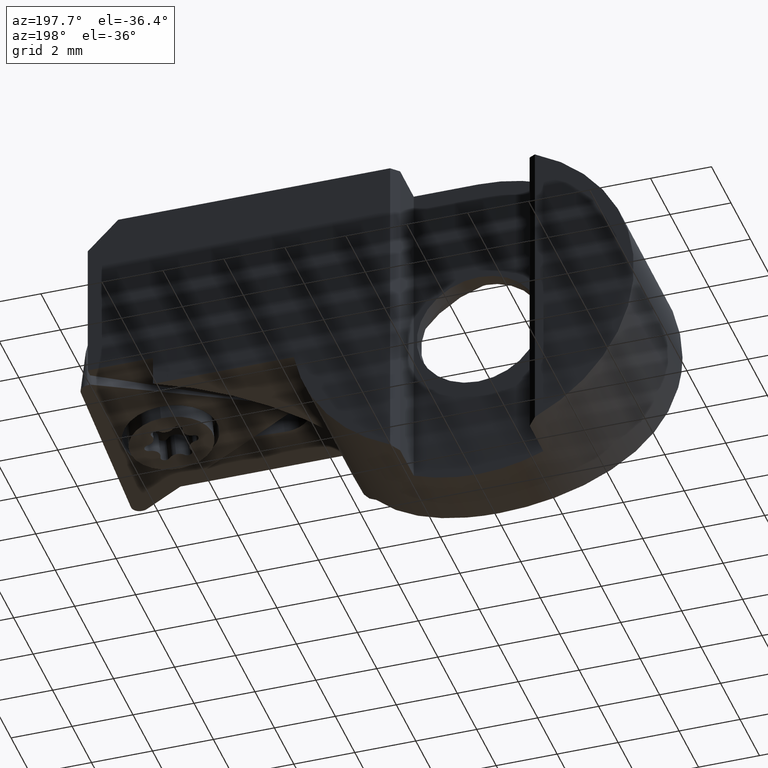
[diagram: clean part render]
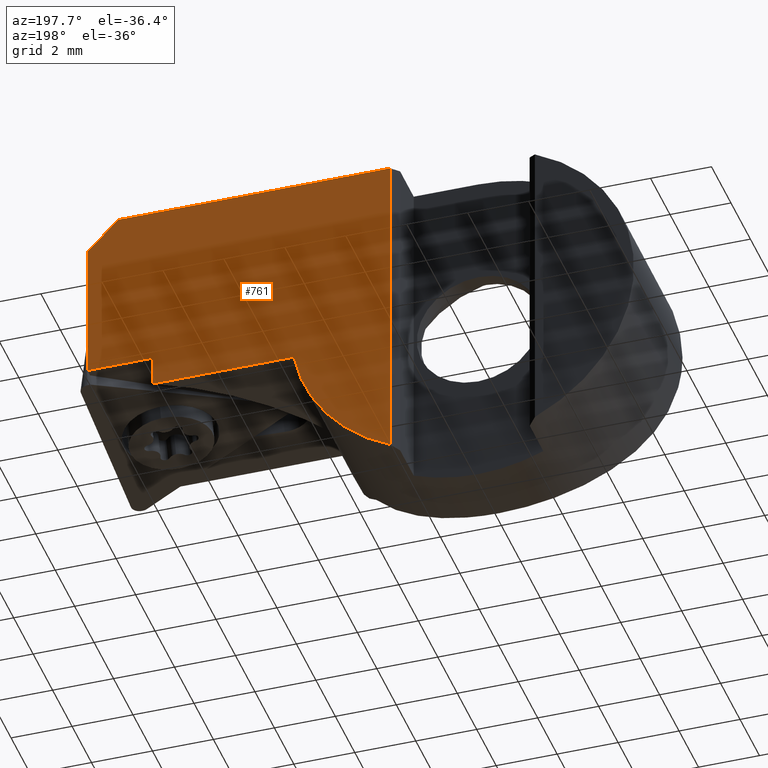
[diagram: same view with one face highlighted and labeled with its STEP entity id]
A machine part, auxiliary view. The second image highlights one B-rep face of the part: STEP entity #761.
In plain terms, the highlighted planar face has unit normal (0, -1, 0).
Its self-contained STEP definition (entity closure, byte-faithful):
#527=VERTEX_POINT('NONE',#1519);
#529=VERTEX_POINT('NONE',#1521);
#561=VERTEX_POINT('NONE',#1553);
#663=EDGE_CURVE('NONE',#1445,#905,#1667,.T.);
#711=EDGE_CURVE('NONE',#939,#527,#1718,.T.);
#761=ADVANCED_FACE('NONE',(#1771),#1772,.F.);
#795=VERTEX_POINT('NONE',#1808);
#831=EDGE_CURVE('NONE',#561,#905,#1848,.F.);
#871=VERTEX_POINT('NONE',#1894);
#885=EDGE_CURVE('NONE',#871,#527,#1909,.T.);
#905=VERTEX_POINT('NONE',#1930);
#939=VERTEX_POINT('NONE',#1967);
#1053=EDGE_CURVE('NONE',#795,#529,#2096,.T.);
#1367=EDGE_CURVE('NONE',#871,#529,#2452,.T.);
#1437=EDGE_CURVE('NONE',#795,#1445,#2527,.F.);
#1445=VERTEX_POINT('NONE',#2535);
#1473=EDGE_CURVE('NONE',#939,#561,#2563,.F.);
#1519=CARTESIAN_POINT('',(2.375,0.0,5.625));
#1521=CARTESIAN_POINT('',(12.2933438010108,4.44089209850063E-016,4.625));
#1553=CARTESIAN_POINT('',(5.53539745637113,0.0,-0.999999999999999));
#1667=LINE('',#2947,#2948);
#1718=LINE('',#3034,#3035);
#1771=FACE_OUTER_BOUND('',#3123,.T.);
#1772=PLANE('',#3124);
#1808=CARTESIAN_POINT('',(12.2933438010108,0.0,-1.50550041367259E-015));
#1848=LINE('',#3722,#3723);
#1894=CARTESIAN_POINT('',(11.2919714550129,0.0,5.625));
#1909=LINE('',#3808,#3809);
#1930=CARTESIAN_POINT('',(10.1539175116744,0.0,-1.0));
#1967=CARTESIAN_POINT('',(2.375,0.0,-5.09901951359278));
#2096=LINE('',#4146,#4147);
#2452=LINE('',#4661,#4662);
#2527=LINE('',#4776,#4777);
#2535=CARTESIAN_POINT('',(10.1539175116744,0.0,-1.26860817456737E-015));
#2563=CIRCLE('',#4826,5.625);
#2947=CARTESIAN_POINT('',(10.1539175116744,0.0,-11.275));
#2948=VECTOR('',#5032,1.0);
#3034=CARTESIAN_POINT('',(2.375,0.0,-3.0));
#3035=VECTOR('',#5092,1.0);
#3123=EDGE_LOOP('',(#5147,#5148,#5149,#5150,#5151,#5152,#5153,#5154));
#3124=AXIS2_PLACEMENT_3D('',#5155,#5156,#5157);
#3722=CARTESIAN_POINT('',(6.6875,0.0,-0.999999999999999));
#3723=VECTOR('',#5245,1.0);
#3808=CARTESIAN_POINT('',(-1.17512824842547E-018,0.0,5.625));
#3809=VECTOR('',#5334,1.0);
#4146=CARTESIAN_POINT('',(12.2933438010108,0.0,2.8125));
#4147=VECTOR('',#5550,1.0);
#4661=CARTESIAN_POINT('',(10.4600765926691,4.44089209850063E-016,6.45575477934714));
#4662=VECTOR('',#6026,1.0);
#4776=CARTESIAN_POINT('',(7.15,0.0,-8.75622461390358E-016));
#4777=VECTOR('',#6103,1.0);
#4826=AXIS2_PLACEMENT_3D('',#6124,#6125,#6126);
#5032=DIRECTION('',(-1.22464679914735E-016,0.0,-1.0));
#5092=DIRECTION('',(1.22464679914735E-016,0.0,1.0));
#5147=ORIENTED_EDGE('',*,*,#1473,.F.);
#5148=ORIENTED_EDGE('',*,*,#711,.T.);
#5149=ORIENTED_EDGE('',*,*,#885,.F.);
#5150=ORIENTED_EDGE('',*,*,#1367,.T.);
#5151=ORIENTED_EDGE('',*,*,#1053,.F.);
#5152=ORIENTED_EDGE('',*,*,#1437,.T.);
#5153=ORIENTED_EDGE('',*,*,#663,.T.);
#5154=ORIENTED_EDGE('',*,*,#831,.F.);
#5155=CARTESIAN_POINT('',(0.0,0.0,0.0));
#5156=DIRECTION('',(0.0,-1.0,0.0));
#5157=DIRECTION('',(1.22464679914735E-016,0.0,1.0));
#5245=DIRECTION('',(-1.0,-0.0,1.22464679914735E-016));
#5334=DIRECTION('',(-1.0,0.0,-7.23427156016615E-018));
#5550=DIRECTION('',(1.22464679914735E-016,0.0,1.0));
#6026=DIRECTION('',(0.707591479715535,0.0,-0.706621750184623));
#6103=DIRECTION('',(1.0,0.0,-1.22464679914735E-016));
#6124=CARTESIAN_POINT('',(0.0,0.0,0.0));
#6125=DIRECTION('',(0.0,1.0,0.0));
#6126=DIRECTION('',(-1.22464679914735E-016,0.0,-1.0));